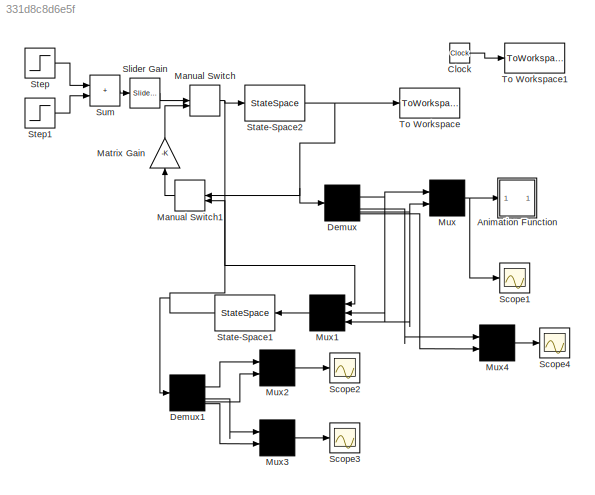
MODEL mdl_331d8c8d6e5f
KIND model
CONFIG AbsTol = auto
CONFIG EnableMultiTasking = on
CONFIG FixedStep = auto
CONFIG MaxStep = auto
CONFIG MinStep = auto
CONFIG RelTol = 1e-3
CONFIG SampleTimeConstraint = Unconstrained
CONFIG SolverName = ode45
CONFIG StartTime = 0.0
CONFIG StopTime = 50
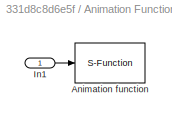
BLOCK [SubSystem] Animation Function
BLOCK [S-Function] Animation Function/Animation function
  DeleteFcn = if ~isempty(findobj('type','figure','name','simppend Animation'));close('simppend Animation'); end;
  EnableBusSupport = off
  FunctionName = craneanim
  Parameters = ts
  SFcnIsStateOwnerBlock = off
  SFunctionDeploymentMode = off
BLOCK [Inport] Animation Function/In1
BLOCK [Clock] Clock
BLOCK [Demux] Demux
  DisplayOption = none
BLOCK [Demux] Demux1
  DisplayOption = none
BLOCK [ManualSwitch] Manual Switch
  CurrentSetting = 0
BLOCK [ManualSwitch] Manual Switch1
  CurrentSetting = 0
BLOCK [Gain] Matrix Gain
  Gain = -K
  Multiplication = Matrix(K*u)
  NameLocation = right
  OutDataTypeStr = Inherit: Same as input
  ParamDataTypeStr = Inherit: Same as input
  SaturateOnIntegerOverflow = on
BLOCK [Mux] Mux
  Inputs = 2
BLOCK [Mux] Mux1
  Inputs = 3
BLOCK [Mux] Mux2
  Inputs = 2
BLOCK [Mux] Mux3
  Inputs = 2
BLOCK [Mux] Mux4
  Inputs = 2
BLOCK [Scope] Scope1
  Floating = off
  NumInputPorts = 1
  ScopeSpecificationString = Simulink.scopes.TimeScopeBlockCfg('CurrentConfiguration', extmgr.ConfigurationSet(extmgr.Configuration('Core','General UI',true),extmgr.Configuration('Core','Source UI',true),extmgr.Configuration('Sources','WiredSimulink',true,'DataLoggingSaveFormat','Array','DataLoggingDecimation','1','DataLoggingDecimateData',true),extmgr.Configuration('Visuals','Time Domain',true,'TimeAxisLabels','All','Seriali...<+1656ch>
BLOCK [Scope] Scope2
  Floating = off
  NumInputPorts = 1
  ScopeSpecificationString = C++SS(StrPVP('Location','[96, 212, 731, 726]'),StrPVP('Open','off'),StrPVP('TickLabels','on'),StrPVP('ZoomMode','xonly'),MxPVP('AxesTitles',54,'struct(''axes1'',''%<SignalLabel>'')'),StrPVP('TimeRange','50'),StrPVP('YMin','-9e-10'),StrPVP('YMax','1e-10'),StrPVP('SaveName','ScopeData1'),StrPVP('DataFormat','Array'),StrPVP('LimitDataPoints','on'),StrPVP('Decimation','1'),StrPVP('BlockParamSampleInpu...<+10ch>
BLOCK [Scope] Scope3
  Floating = off
  NumInputPorts = 1
  ScopeSpecificationString = C++SS(StrPVP('Location','[62, 130, 372, 434]'),StrPVP('Open','off'),StrPVP('TickLabels','on'),StrPVP('ZoomMode','xonly'),MxPVP('AxesTitles',54,'struct(''axes1'',''%<SignalLabel>'')'),StrPVP('TimeRange','50'),StrPVP('YMin','-10'),StrPVP('YMax','70'),StrPVP('SaveName','ScopeData2'),StrPVP('DataFormat','Array'),StrPVP('LimitDataPoints','on'),StrPVP('Decimation','1'),StrPVP('BlockParamSampleInput','of...<+4ch>
BLOCK [Scope] Scope4
  Floating = off
  NumInputPorts = 1
  ScopeSpecificationString = Simulink.scopes.TimeScopeBlockCfg('CurrentConfiguration', extmgr.ConfigurationSet(extmgr.Configuration('Core','General UI',true),extmgr.Configuration('Core','Source UI',true),extmgr.Configuration('Sources','WiredSimulink',true,'DataLoggingVariableName','ScopeData3','DataLoggingSaveFormat','Array','DataLoggingLimitDataPoints',true,'DataLoggingDecimation','1','DataLoggingDecimateData',true),extmgr.C...<+1767ch>
BLOCK [Reference] Slider Gain  REF=simulink/Math
Operations/Slider
Gain
  SourceBlock = simulink/Math\nOperations/Slider\nGain
  SourceType = Slider Gain
BLOCK [StateSpace] State-Space1
  A = F-L*H1
  B = [G L]
  C = eye(4)
  D = zeros(4,3)
  InitialCondition = zeros(4,1)
BLOCK [StateSpace] State-Space2
  A = F
  B = G
  C = H
  D = J
  InitialCondition = x0
BLOCK [Step] Step
BLOCK [Step] Step1
  After = -1
  Time = 5
BLOCK [Sum] Sum
  IconShape = rectangular
  InputSameDT = on
  OutDataTypeStr = Inherit: Same as first input
  SaturateOnIntegerOverflow = on
BLOCK [ToWorkspace] To Workspace
  MaxDataPoints = inf
  SampleTime = -1
  VariableName = y
BLOCK [ToWorkspace] To Workspace1
  MaxDataPoints = inf
  SampleTime = -1
  VariableName = t
LINE Animation Function/In1:1 -> Animation Function/Animation function:1
LINE Clock:1 -> To Workspace1:1
LINE Demux1:1 -> Mux2:1
LINE Demux1:2 -> Mux3:1
LINE Demux1:3 -> Mux2:2
LINE Demux1:4 -> Mux3:2
NET Demux:1 -> Mux1:2, Mux:1
LINE Demux:2 -> Mux4:1
NET Demux:3 -> Mux1:3, Mux:2
LINE Demux:4 -> Mux4:2
LINE Manual Switch1:1 -> Matrix Gain:1
NET Manual Switch:1 -> Mux1:1, State-Space2:1
LINE Matrix Gain:1 -> Manual Switch:2
LINE Mux1:1 -> State-Space1:1
LINE Mux2:1 -> Scope2:1
LINE Mux3:1 -> Scope3:1
LINE Mux4:1 -> Scope4:1
NET Mux:1 -> Animation Function:1, Scope1:1
LINE Slider Gain:1 -> Manual Switch:1
NET State-Space1:1 -> Demux1:1, Manual Switch1:2
NET State-Space2:1 -> Demux:1, Manual Switch1:1, To Workspace:1
LINE Step1:1 -> Sum:2
LINE Step:1 -> Sum:1
LINE Sum:1 -> Slider Gain:1
note: NET lines group one-source signal fan-out (src -> all destinations, sorted); 1:1 wires keep LINE
